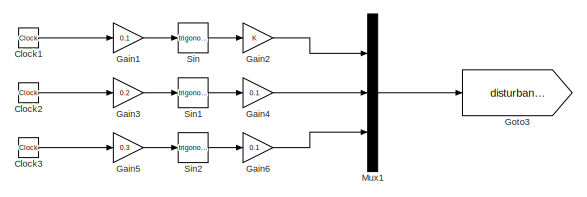
[diagram: root canvas - part 1/3, top left region]
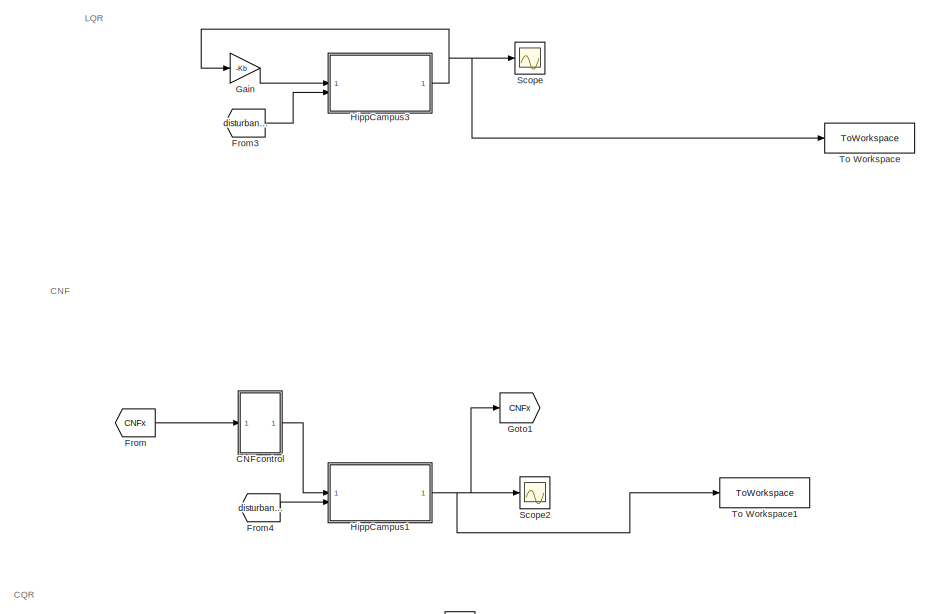
[diagram: root canvas - part 2/3, top right region]
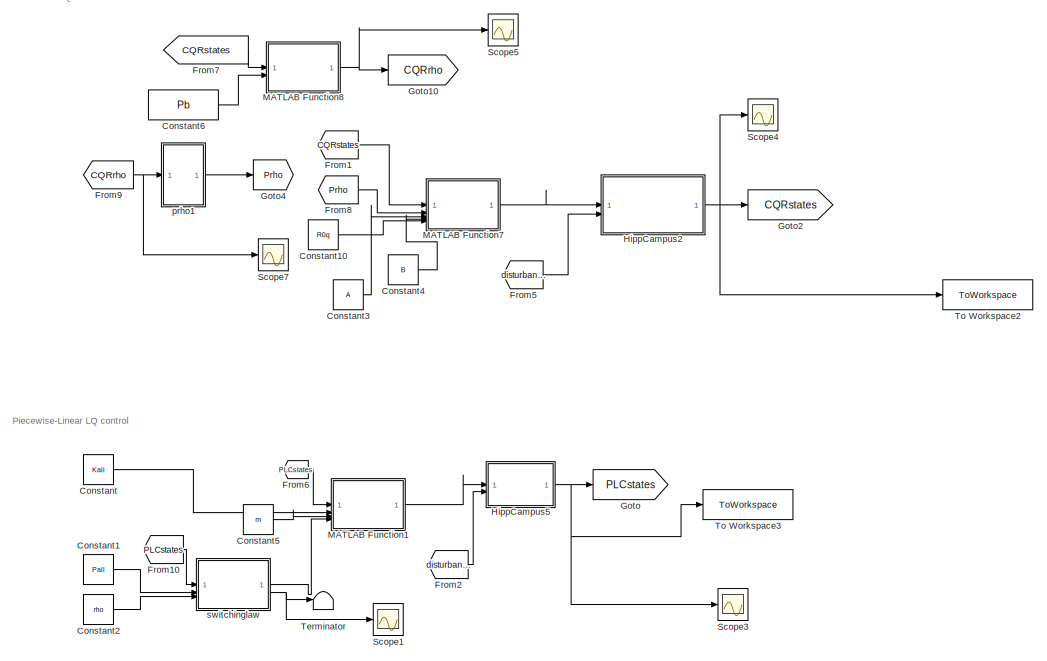
[diagram: root canvas - part 3/3, bottom right region]
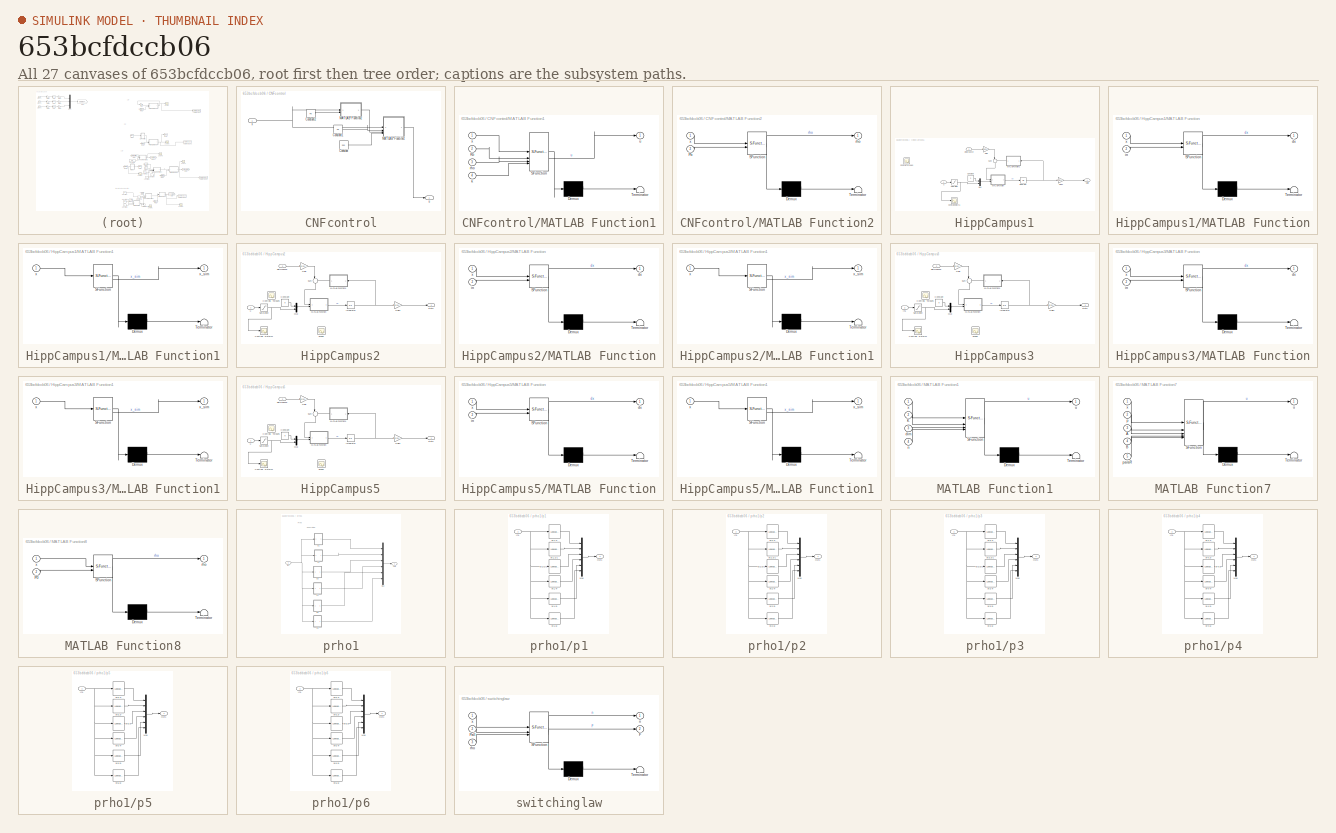
[diagram: thumbnail index - all 27 canvases of the model, root first then tree order]
MODEL slx_653bcfdccb06
KIND model
CONFIG AbsTol = auto
CONFIG EnableMultiTasking = off
CONFIG FixedStep = 0.0001
CONFIG MaxStep = auto
CONFIG MinStep = auto
CONFIG RelTol = 1e-3
CONFIG SampleTimeConstraint = Unconstrained
CONFIG SolverName = ode3
CONFIG StartTime = 0.0
CONFIG StopTime = 50
BLOCK [SubSystem] CNFcontrol
BLOCK [Constant] CNFcontrol/Constant
  Value = 200
BLOCK [Constant] CNFcontrol/Constant1
  Value = Kb
BLOCK [Constant] CNFcontrol/Constant2
  Value = Pb
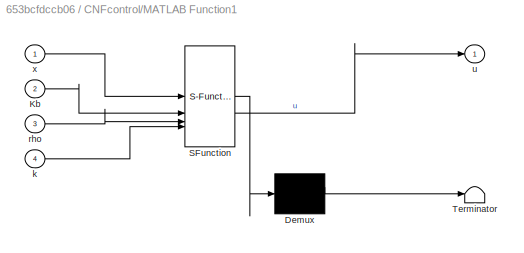
BLOCK [SubSystem] CNFcontrol/MATLAB Function1
  ErrorFcn = Stateflow.Translate.translate
  LibrarySourceBlock = simulink/User-Defined\nFunctions/MATLAB Function
  PermitHierarchicalResolution = ExplicitOnly
  SFBlockType = MATLAB Function
  TreatAsAtomicUnit = on
BLOCK [Demux] CNFcontrol/MATLAB Function1/ Demux 
  Outputs = 1
BLOCK [S-Function] CNFcontrol/MATLAB Function1/ SFunction 
  EnableBusSupport = on
  FunctionName = sf_sfun
  PortCounts = [4 2]
  SFcnIsStateOwnerBlock = off
  SFunctionDeploymentMode = off
  Tag = Stateflow S-Function 3
BLOCK [Terminator] CNFcontrol/MATLAB Function1/ Terminator 
BLOCK [Inport] CNFcontrol/MATLAB Function1/Kb
  Port = 2
BLOCK [Inport] CNFcontrol/MATLAB Function1/k
  Port = 4
BLOCK [Inport] CNFcontrol/MATLAB Function1/rho
  Port = 3
BLOCK [Outport] CNFcontrol/MATLAB Function1/u
BLOCK [Inport] CNFcontrol/MATLAB Function1/x
BLOCK [SubSystem] CNFcontrol/MATLAB Function2
  ErrorFcn = Stateflow.Translate.translate
  LibrarySourceBlock = simulink/User-Defined\nFunctions/MATLAB Function
  PermitHierarchicalResolution = ExplicitOnly
  SFBlockType = MATLAB Function
  TreatAsAtomicUnit = on
BLOCK [Demux] CNFcontrol/MATLAB Function2/ Demux 
  Outputs = 1
BLOCK [S-Function] CNFcontrol/MATLAB Function2/ SFunction 
  EnableBusSupport = on
  FunctionName = sf_sfun
  PortCounts = [2 2]
  SFcnIsStateOwnerBlock = off
  SFunctionDeploymentMode = off
  Tag = Stateflow S-Function 4
BLOCK [Terminator] CNFcontrol/MATLAB Function2/ Terminator 
BLOCK [Inport] CNFcontrol/MATLAB Function2/Pb
  Port = 2
BLOCK [Outport] CNFcontrol/MATLAB Function2/rho
BLOCK [Inport] CNFcontrol/MATLAB Function2/x
BLOCK [Outport] CNFcontrol/u
BLOCK [Inport] CNFcontrol/x
BLOCK [Clock] Clock1
BLOCK [Clock] Clock2
BLOCK [Clock] Clock3
BLOCK [Constant] Constant
  Value = Kall
BLOCK [Constant] Constant1
  Value = Pall
BLOCK [Constant] Constant10
  Value = R0q
BLOCK [Constant] Constant2
  Value = rho
BLOCK [Constant] Constant3
  Value = A
BLOCK [Constant] Constant4
  Value = B
BLOCK [Constant] Constant5
  Value = m
BLOCK [Constant] Constant6
  Value = Pb
BLOCK [From] From
  GotoTag = CNFx
BLOCK [From] From1
  GotoTag = CQRstates
BLOCK [From] From10
  GotoTag = PLCstates
BLOCK [From] From2
  GotoTag = disturbance
BLOCK [From] From3
  GotoTag = disturbance
BLOCK [From] From4
  GotoTag = disturbance
BLOCK [From] From5
  GotoTag = disturbance
BLOCK [From] From6
  GotoTag = PLCstates
BLOCK [From] From7
  GotoTag = CQRstates
BLOCK [From] From8
  GotoTag = Prho
BLOCK [From] From9
  GotoTag = CQRrho
BLOCK [Gain] Gain
  Gain = -Kb
  Multiplication = Matrix(K*u)
BLOCK [Gain] Gain1
  Gain = 0.1
BLOCK [Gain] Gain2
BLOCK [Gain] Gain3
  Gain = 0.2
BLOCK [Gain] Gain4
  Gain = 0.1
BLOCK [Gain] Gain5
  Gain = 0.3
BLOCK [Gain] Gain6
  Gain = 0.1
BLOCK [Goto] Goto
  GotoTag = PLCstates
BLOCK [Goto] Goto1
  GotoTag = CNFx
BLOCK [Goto] Goto10
  GotoTag = CQRrho
BLOCK [Goto] Goto2
  GotoTag = CQRstates
BLOCK [Goto] Goto3
  GotoTag = disturbance
BLOCK [Goto] Goto4
  GotoTag = Prho
BLOCK [SubSystem] HippCampus1
BLOCK [Constant] HippCampus1/Constant
  Value = 0
BLOCK [Scope] HippCampus1/Controls: Rotors1
  Floating = off
  NumInputPorts = 1
  ScopeSpecificationString = Simulink.scopes.TimeScopeBlockCfg('CurrentConfiguration', extmgr.ConfigurationSet(extmgr.Configuration('Core','General UI',true),extmgr.Configuration('Core','Source UI',true),extmgr.Configuration('Sources','WiredSimulink',true,'DataLoggingVariableName','ScopeData1'),extmgr.Configuration('Visuals','Time Domain',true,'SerializedDisplays',{struct('MinYLimReal','-0.71236','MaxYLimReal','0.63928','YLab...<+1614ch>
BLOCK [Scope] HippCampus1/Controls: Torques
  Floating = off
  NumInputPorts = 1
  ScopeSpecificationString = Simulink.scopes.TimeScopeBlockCfg('CurrentConfiguration', extmgr.ConfigurationSet(extmgr.Configuration('Core','General UI',true),extmgr.Configuration('Core','Source UI',true),extmgr.Configuration('Sources','WiredSimulink',true,'DataLoggingVariableName','ScopeData1'),extmgr.Configuration('Visuals','Time Domain',true,'SerializedDisplays',{struct('MinYLimReal','-3.5292','MaxYLimReal','3.00298','YLabe...<+1552ch>  <repeated x4 — deduplicated; at blocks: Controls: Torques>
BLOCK [Gain] HippCampus1/Gain
  Gain = [zeros(6,3);eye(3);zeros(3,3)]
  Multiplication = Matrix(K*u)
BLOCK [Gain] HippCampus1/Gain1
  Gain = [zeros(3,3),eye(3),zeros(3,6);zeros(3,9),eye(3)]
  Multiplication = Matrix(K*u)
BLOCK [Integrator] HippCampus1/Integrator
  InitialCondition = [zeros(3,1);x0(1:3);zeros(3,1);x0(4:6)]
BLOCK [SubSystem] HippCampus1/MATLAB Function
  ErrorFcn = Stateflow.Translate.translate
  LibrarySourceBlock = simulink/User-Defined\nFunctions/MATLAB Function
  PermitHierarchicalResolution = ExplicitOnly
  SFBlockType = MATLAB Function
  TreatAsAtomicUnit = on
BLOCK [Demux] HippCampus1/MATLAB Function/ Demux 
  Outputs = 1
BLOCK [S-Function] HippCampus1/MATLAB Function/ SFunction 
  EnableBusSupport = on
  FunctionName = sf_sfun
  PortCounts = [2 2]
  SFcnIsStateOwnerBlock = off
  SFunctionDeploymentMode = off
  Tag = Stateflow S-Function 1
BLOCK [Terminator] HippCampus1/MATLAB Function/ Terminator 
BLOCK [Outport] HippCampus1/MATLAB Function/dx
BLOCK [Inport] HippCampus1/MATLAB Function/in
  Port = 2
BLOCK [Inport] HippCampus1/MATLAB Function/x
BLOCK [SubSystem] HippCampus1/MATLAB Function1
  ErrorFcn = Stateflow.Translate.translate
  LibrarySourceBlock = simulink/User-Defined\nFunctions/MATLAB Function
  NameLocation = top
  PermitHierarchicalResolution = ExplicitOnly
  SFBlockType = MATLAB Function
  TreatAsAtomicUnit = on
BLOCK [Demux] HippCampus1/MATLAB Function1/ Demux 
  Outputs = 1
BLOCK [S-Function] HippCampus1/MATLAB Function1/ SFunction 
  EnableBusSupport = on
  FunctionName = sf_sfun
  PortCounts = [1 2]
  SFcnIsStateOwnerBlock = off
  SFunctionDeploymentMode = off
  Tag = Stateflow S-Function 2
BLOCK [Terminator] HippCampus1/MATLAB Function1/ Terminator 
BLOCK [Inport] HippCampus1/MATLAB Function1/x
BLOCK [Outport] HippCampus1/MATLAB Function1/x_sim
BLOCK [Mux] HippCampus1/Mux
  DisplayOption = bar
  Inputs = 2
BLOCK [Saturate] HippCampus1/Saturation
  LowerLimit = -umax'
  UpperLimit = umax'
BLOCK [Sum] HippCampus1/Sum
  Inputs = |++
  NameLocation = left
BLOCK [Inport] HippCampus1/disturbance
  Port = 2
BLOCK [Outport] HippCampus1/state
BLOCK [Inport] HippCampus1/u
BLOCK [SubSystem] HippCampus2
BLOCK [Constant] HippCampus2/Constant
  Value = 0
BLOCK [Scope] HippCampus2/Controls: Rotors1
  Floating = off
  NumInputPorts = 1
  ScopeSpecificationString = Simulink.scopes.TimeScopeBlockCfg('CurrentConfiguration', extmgr.ConfigurationSet(extmgr.Configuration('Core','General UI',true),extmgr.Configuration('Core','Source UI',true),extmgr.Configuration('Sources','WiredSimulink',true,'DataLoggingVariableName','ScopeData1'),extmgr.Configuration('Visuals','Time Domain',true,'SerializedDisplays',{struct('MinYLimReal','-0.7215','MaxYLimReal','0.7215','YLabel...<+1608ch>
BLOCK [Scope] HippCampus2/Controls: Torques
  Floating = off
  NumInputPorts = 1
BLOCK [Gain] HippCampus2/Gain
  Gain = [zeros(6,3);eye(3);zeros(3,3)]
  Multiplication = Matrix(K*u)
BLOCK [Gain] HippCampus2/Gain1
  Gain = [zeros(3,3),eye(3),zeros(3,6);zeros(3,9),eye(3)]
  Multiplication = Matrix(K*u)
BLOCK [Integrator] HippCampus2/Integrator
  InitialCondition = [zeros(3,1);x0(1:3);zeros(3,1);x0(4:6)]
BLOCK [SubSystem] HippCampus2/MATLAB Function
  ErrorFcn = Stateflow.Translate.translate
  LibrarySourceBlock = simulink/User-Defined\nFunctions/MATLAB Function
  PermitHierarchicalResolution = ExplicitOnly
  SFBlockType = MATLAB Function
  TreatAsAtomicUnit = on
BLOCK [Demux] HippCampus2/MATLAB Function/ Demux 
  Outputs = 1
BLOCK [S-Function] HippCampus2/MATLAB Function/ SFunction 
  EnableBusSupport = on
  FunctionName = sf_sfun
  PortCounts = [2 2]
  SFcnIsStateOwnerBlock = off
  SFunctionDeploymentMode = off
  Tag = Stateflow S-Function 5
BLOCK [Terminator] HippCampus2/MATLAB Function/ Terminator 
BLOCK [Outport] HippCampus2/MATLAB Function/dx
BLOCK [Inport] HippCampus2/MATLAB Function/in
  Port = 2
BLOCK [Inport] HippCampus2/MATLAB Function/x
BLOCK [SubSystem] HippCampus2/MATLAB Function1
  ErrorFcn = Stateflow.Translate.translate
  LibrarySourceBlock = simulink/User-Defined\nFunctions/MATLAB Function
  NameLocation = top
  PermitHierarchicalResolution = ExplicitOnly
  SFBlockType = MATLAB Function
  TreatAsAtomicUnit = on
BLOCK [Demux] HippCampus2/MATLAB Function1/ Demux 
  Outputs = 1
BLOCK [S-Function] HippCampus2/MATLAB Function1/ SFunction 
  EnableBusSupport = on
  FunctionName = sf_sfun
  PortCounts = [1 2]
  SFcnIsStateOwnerBlock = off
  SFunctionDeploymentMode = off
  Tag = Stateflow S-Function 6
BLOCK [Terminator] HippCampus2/MATLAB Function1/ Terminator 
BLOCK [Inport] HippCampus2/MATLAB Function1/x
BLOCK [Outport] HippCampus2/MATLAB Function1/x_sim
BLOCK [Mux] HippCampus2/Mux
  DisplayOption = bar
  Inputs = 2
BLOCK [Saturate] HippCampus2/Saturation
  LowerLimit = -umax'
  UpperLimit = umax'
BLOCK [Scope] HippCampus2/Scope
  Floating = off
  NumInputPorts = 1
  ScopeSpecificationString = Simulink.scopes.TimeScopeBlockCfg('CurrentConfiguration', extmgr.ConfigurationSet(extmgr.Configuration('Core','General UI',true),extmgr.Configuration('Core','Source UI',true),extmgr.Configuration('Sources','WiredSimulink',true,'DataLoggingVariableName','ScopeData2'),extmgr.Configuration('Visuals','Time Domain',true,'SerializedDisplays',{struct('MinYLimReal','-2.14935','MaxYLimReal','13.57215','YLa...<+1479ch>  <repeated x3 — deduplicated; at blocks: Scope>
BLOCK [Sum] HippCampus2/Sum
  Inputs = |++
  NameLocation = left
BLOCK [Inport] HippCampus2/disturbance
  Port = 2
BLOCK [Outport] HippCampus2/state
BLOCK [Inport] HippCampus2/u
BLOCK [SubSystem] HippCampus3
BLOCK [Constant] HippCampus3/Constant
  Value = 0
BLOCK [Scope] HippCampus3/Controls: Rotors1
  Floating = off
  NumInputPorts = 1
  ScopeSpecificationString = Simulink.scopes.TimeScopeBlockCfg('CurrentConfiguration', extmgr.ConfigurationSet(extmgr.Configuration('Core','General UI',true),extmgr.Configuration('Core','Source UI',true),extmgr.Configuration('Sources','WiredSimulink',true,'DataLoggingVariableName','ScopeData1'),extmgr.Configuration('Visuals','Time Domain',true,'SerializedDisplays',{struct('MinYLimReal','-0.68419','MaxYLimReal','0.38572','YLab...<+1614ch>
BLOCK [Scope] HippCampus3/Controls: Torques
  Floating = off
  NumInputPorts = 1
BLOCK [Gain] HippCampus3/Gain
  Gain = [zeros(6,3);eye(3);zeros(3,3)]
  Multiplication = Matrix(K*u)
BLOCK [Gain] HippCampus3/Gain1
  Gain = [zeros(3,3),eye(3),zeros(3,6);zeros(3,9),eye(3)]
  Multiplication = Matrix(K*u)
BLOCK [Inport] HippCampus3/In1
BLOCK [Integrator] HippCampus3/Integrator
  InitialCondition = [zeros(3,1);x0(1:3);zeros(3,1);x0(4:6)]
BLOCK [SubSystem] HippCampus3/MATLAB Function
  ErrorFcn = Stateflow.Translate.translate
  LibrarySourceBlock = simulink/User-Defined\nFunctions/MATLAB Function
  PermitHierarchicalResolution = ExplicitOnly
  SFBlockType = MATLAB Function
  TreatAsAtomicUnit = on
BLOCK [Demux] HippCampus3/MATLAB Function/ Demux 
  Outputs = 1
BLOCK [S-Function] HippCampus3/MATLAB Function/ SFunction 
  EnableBusSupport = on
  FunctionName = sf_sfun
  PortCounts = [2 2]
  SFcnIsStateOwnerBlock = off
  SFunctionDeploymentMode = off
  Tag = Stateflow S-Function 19
BLOCK [Terminator] HippCampus3/MATLAB Function/ Terminator 
BLOCK [Outport] HippCampus3/MATLAB Function/dx
BLOCK [Inport] HippCampus3/MATLAB Function/in
  Port = 2
BLOCK [Inport] HippCampus3/MATLAB Function/x
BLOCK [SubSystem] HippCampus3/MATLAB Function1
  ErrorFcn = Stateflow.Translate.translate
  LibrarySourceBlock = simulink/User-Defined\nFunctions/MATLAB Function
  NameLocation = top
  PermitHierarchicalResolution = ExplicitOnly
  SFBlockType = MATLAB Function
  TreatAsAtomicUnit = on
BLOCK [Demux] HippCampus3/MATLAB Function1/ Demux 
  Outputs = 1
BLOCK [S-Function] HippCampus3/MATLAB Function1/ SFunction 
  EnableBusSupport = on
  FunctionName = sf_sfun
  PortCounts = [1 2]
  SFcnIsStateOwnerBlock = off
  SFunctionDeploymentMode = off
  Tag = Stateflow S-Function 15
BLOCK [Terminator] HippCampus3/MATLAB Function1/ Terminator 
BLOCK [Inport] HippCampus3/MATLAB Function1/x
BLOCK [Outport] HippCampus3/MATLAB Function1/x_sim
BLOCK [Mux] HippCampus3/Mux
  DisplayOption = bar
  Inputs = 2
BLOCK [Saturate] HippCampus3/Saturation
  LowerLimit = -umax'
  UpperLimit = umax'
BLOCK [Scope] HippCampus3/Scope
  Floating = off
  NumInputPorts = 1
BLOCK [Sum] HippCampus3/Sum
  Inputs = |++
  NameLocation = left
BLOCK [Inport] HippCampus3/disturbance
  Port = 2
BLOCK [Outport] HippCampus3/state
BLOCK [SubSystem] HippCampus5
BLOCK [Constant] HippCampus5/Constant
  Value = 0
BLOCK [Scope] HippCampus5/Controls: Rotors1
  Floating = off
  NumInputPorts = 1
  ScopeSpecificationString = Simulink.scopes.TimeScopeBlockCfg('CurrentConfiguration', extmgr.ConfigurationSet(extmgr.Configuration('Core','General UI',true),extmgr.Configuration('Core','Source UI',true),extmgr.Configuration('Sources','WiredSimulink',true,'DataLoggingVariableName','ScopeData1'),extmgr.Configuration('Visuals','Time Domain',true,'SerializedDisplays',{struct('MinYLimReal','-0.7215','MaxYLimReal','0.7215','YLabel...<+1608ch>
BLOCK [Scope] HippCampus5/Controls: Torques
  Floating = off
  NumInputPorts = 1
BLOCK [Gain] HippCampus5/Gain
  Gain = [zeros(6,3);eye(3);zeros(3,3)]
  Multiplication = Matrix(K*u)
BLOCK [Gain] HippCampus5/Gain1
  Gain = [zeros(3,3),eye(3),zeros(3,6);zeros(3,9),eye(3)]
  Multiplication = Matrix(K*u)
BLOCK [Integrator] HippCampus5/Integrator
  InitialCondition = [zeros(3,1);x0(1:3);zeros(3,1);x0(4:6)]
BLOCK [SubSystem] HippCampus5/MATLAB Function
  ErrorFcn = Stateflow.Translate.translate
  LibrarySourceBlock = simulink/User-Defined\nFunctions/MATLAB Function
  PermitHierarchicalResolution = ExplicitOnly
  SFBlockType = MATLAB Function
  TreatAsAtomicUnit = on
BLOCK [Demux] HippCampus5/MATLAB Function/ Demux 
  Outputs = 1
BLOCK [S-Function] HippCampus5/MATLAB Function/ SFunction 
  EnableBusSupport = on
  FunctionName = sf_sfun
  PortCounts = [2 2]
  SFcnIsStateOwnerBlock = off
  SFunctionDeploymentMode = off
  Tag = Stateflow S-Function 13
BLOCK [Terminator] HippCampus5/MATLAB Function/ Terminator 
BLOCK [Outport] HippCampus5/MATLAB Function/dx
BLOCK [Inport] HippCampus5/MATLAB Function/in
  Port = 2
BLOCK [Inport] HippCampus5/MATLAB Function/x
BLOCK [SubSystem] HippCampus5/MATLAB Function1
  ErrorFcn = Stateflow.Translate.translate
  LibrarySourceBlock = simulink/User-Defined\nFunctions/MATLAB Function
  NameLocation = top
  PermitHierarchicalResolution = ExplicitOnly
  SFBlockType = MATLAB Function
  TreatAsAtomicUnit = on
BLOCK [Demux] HippCampus5/MATLAB Function1/ Demux 
  Outputs = 1
BLOCK [S-Function] HippCampus5/MATLAB Function1/ SFunction 
  EnableBusSupport = on
  FunctionName = sf_sfun
  PortCounts = [1 2]
  SFcnIsStateOwnerBlock = off
  SFunctionDeploymentMode = off
  Tag = Stateflow S-Function 14
BLOCK [Terminator] HippCampus5/MATLAB Function1/ Terminator 
BLOCK [Inport] HippCampus5/MATLAB Function1/x
BLOCK [Outport] HippCampus5/MATLAB Function1/x_sim
BLOCK [Mux] HippCampus5/Mux
  DisplayOption = bar
  Inputs = 2
BLOCK [Saturate] HippCampus5/Saturation
  LowerLimit = -umax'
  UpperLimit = umax'
BLOCK [Scope] HippCampus5/Scope
  Floating = off
  NumInputPorts = 1
BLOCK [Sum] HippCampus5/Sum
  Inputs = |++
  NameLocation = left
BLOCK [Inport] HippCampus5/disturbance
  Port = 2
BLOCK [Outport] HippCampus5/state
BLOCK [Inport] HippCampus5/u
BLOCK [SubSystem] MATLAB Function1
  ErrorFcn = Stateflow.Translate.translate
  LibrarySourceBlock = simulink/User-Defined\nFunctions/MATLAB Function
  PermitHierarchicalResolution = ExplicitOnly
  SFBlockType = MATLAB Function
  TreatAsAtomicUnit = on
BLOCK [Demux] MATLAB Function1/ Demux 
  Outputs = 1
BLOCK [S-Function] MATLAB Function1/ SFunction 
  EnableBusSupport = on
  FunctionName = sf_sfun
  PortCounts = [4 2]
  SFcnIsStateOwnerBlock = off
  SFunctionDeploymentMode = off
  Tag = Stateflow S-Function 7
BLOCK [Terminator] MATLAB Function1/ Terminator 
BLOCK [Inport] MATLAB Function1/K
  Port = 2
BLOCK [Inport] MATLAB Function1/dim
  Port = 3
BLOCK [Inport] MATLAB Function1/n
  Port = 4
BLOCK [Outport] MATLAB Function1/u
BLOCK [Inport] MATLAB Function1/x
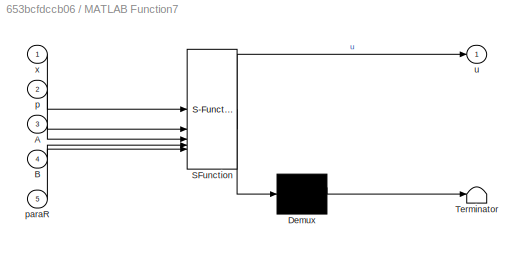
BLOCK [SubSystem] MATLAB Function7
  ErrorFcn = Stateflow.Translate.translate
  LibrarySourceBlock = simulink/User-Defined\nFunctions/MATLAB Function
  PermitHierarchicalResolution = ExplicitOnly
  SFBlockType = MATLAB Function
  TreatAsAtomicUnit = on
BLOCK [Demux] MATLAB Function7/ Demux 
  Outputs = 1
BLOCK [S-Function] MATLAB Function7/ SFunction 
  EnableBusSupport = on
  FunctionName = sf_sfun
  PortCounts = [5 2]
  SFcnIsStateOwnerBlock = off
  SFunctionDeploymentMode = off
  Tag = Stateflow S-Function 9
BLOCK [Terminator] MATLAB Function7/ Terminator 
BLOCK [Inport] MATLAB Function7/A
  Port = 3
BLOCK [Inport] MATLAB Function7/B
  Port = 4
BLOCK [Inport] MATLAB Function7/p
  Port = 2
BLOCK [Inport] MATLAB Function7/paraR
  Port = 5
BLOCK [Outport] MATLAB Function7/u
BLOCK [Inport] MATLAB Function7/x
BLOCK [SubSystem] MATLAB Function8
  ErrorFcn = Stateflow.Translate.translate
  LibrarySourceBlock = simulink/User-Defined\nFunctions/MATLAB Function
  PermitHierarchicalResolution = ExplicitOnly
  SFBlockType = MATLAB Function
  TreatAsAtomicUnit = on
BLOCK [Demux] MATLAB Function8/ Demux 
  Outputs = 1
BLOCK [S-Function] MATLAB Function8/ SFunction 
  EnableBusSupport = on
  FunctionName = sf_sfun
  PortCounts = [2 2]
  SFcnIsStateOwnerBlock = off
  SFunctionDeploymentMode = off
  Tag = Stateflow S-Function 11
BLOCK [Terminator] MATLAB Function8/ Terminator 
BLOCK [Inport] MATLAB Function8/P0
  Port = 2
BLOCK [Outport] MATLAB Function8/rho
BLOCK [Inport] MATLAB Function8/x
BLOCK [Mux] Mux1
  DisplayOption = bar
  Inputs = 3
BLOCK [Scope] Scope
  Floating = off
  NumInputPorts = 1
  ScopeSpecificationString = Simulink.scopes.TimeScopeBlockCfg('CurrentConfiguration', extmgr.ConfigurationSet(extmgr.Configuration('Core','General UI',true),extmgr.Configuration('Core','Source UI',true),extmgr.Configuration('Sources','WiredSimulink',true,'DataLoggingVariableName','ScopeData1'),extmgr.Configuration('Visuals','Time Domain',true,'SerializedDisplays',{struct('MinYLimReal','-6.13344','MaxYLimReal','6.47999','YLab...<+1639ch>
BLOCK [Scope] Scope1
  Floating = off
  NumInputPorts = 1
  ScopeSpecificationString = Simulink.scopes.TimeScopeBlockCfg('CurrentConfiguration', extmgr.ConfigurationSet(extmgr.Configuration('Core','General UI',true),extmgr.Configuration('Core','Source UI',true),extmgr.Configuration('Sources','WiredSimulink',true,'DataLoggingVariableName','ScopeData6'),extmgr.Configuration('Visuals','Time Domain',true,'SerializedDisplays',{struct('MinYLimReal','-1.25','MaxYLimReal','1.25','YLabelReal...<+3416ch>
BLOCK [Scope] Scope2
  Floating = off
  NumInputPorts = 1
  ScopeSpecificationString = Simulink.scopes.TimeScopeBlockCfg('CurrentConfiguration', extmgr.ConfigurationSet(extmgr.Configuration('Core','General UI',true),extmgr.Configuration('Core','Source UI',true),extmgr.Configuration('Sources','WiredSimulink',true,'DataLoggingVariableName','ScopeData2'),extmgr.Configuration('Visuals','Time Domain',true,'SerializedDisplays',{struct('MinYLimReal','-5.21019','MaxYLimReal','3.114','YLabel...<+1638ch>
BLOCK [Scope] Scope3
  Floating = off
  NumInputPorts = 1
  ScopeSpecificationString = Simulink.scopes.TimeScopeBlockCfg('CurrentConfiguration', extmgr.ConfigurationSet(extmgr.Configuration('Core','General UI',true),extmgr.Configuration('Core','Source UI',true),extmgr.Configuration('Sources','WiredSimulink',true,'DataLoggingVariableName','ScopeData7'),extmgr.Configuration('Visuals','Time Domain',true,'SerializedDisplays',{struct('MinYLimReal','-5.30525','MaxYLimReal','3.38277','YLab...<+1668ch>
BLOCK [Scope] Scope4
  Floating = off
  NumInputPorts = 1
  ScopeSpecificationString = Simulink.scopes.TimeScopeBlockCfg('CurrentConfiguration', extmgr.ConfigurationSet(extmgr.Configuration('Core','General UI',true),extmgr.Configuration('Core','Source UI',true),extmgr.Configuration('Sources','WiredSimulink',true,'DataLoggingVariableName','ScopeData3'),extmgr.Configuration('Visuals','Time Domain',true,'SerializedDisplays',{struct('MinYLimReal','-4.91141','MaxYLimReal','3.80881','YLab...<+1661ch>
BLOCK [Scope] Scope5
  Floating = off
  NumInputPorts = 1
  ScopeSpecificationString = Simulink.scopes.TimeScopeBlockCfg('CurrentConfiguration', extmgr.ConfigurationSet(extmgr.Configuration('Core','General UI',true),extmgr.Configuration('Core','Source UI',true),extmgr.Configuration('Sources','WiredSimulink',true,'DataLoggingVariableName','ScopeData4'),extmgr.Configuration('Visuals','Time Domain',true,'SerializedDisplays',{struct('MinYLimReal','-0.00041','MaxYLimReal','0.00372','YLab...<+1443ch>
BLOCK [Scope] Scope7
  Floating = off
  NumInputPorts = 1
  ScopeSpecificationString = Simulink.scopes.TimeScopeBlockCfg('CurrentConfiguration', extmgr.ConfigurationSet(extmgr.Configuration('Core','General UI',true),extmgr.Configuration('Core','Source UI',true),extmgr.Configuration('Sources','WiredSimulink',true,'DataLoggingVariableName','ScopeData5'),extmgr.Configuration('Visuals','Time Domain',true,'SerializedDisplays',{struct('MinYLimReal','-4.00898','MaxYLimReal','36.34295','YLa...<+1397ch>
BLOCK [Trigonometry] Sin
BLOCK [Trigonometry] Sin1
BLOCK [Trigonometry] Sin2
BLOCK [Terminator] Terminator
BLOCK [ToWorkspace] To Workspace
  FixptAsFi = on
  MaxDataPoints = inf
  SampleTime = -1
  SaveFormat = Timeseries
  VariableName = LQRstate
BLOCK [ToWorkspace] To Workspace1
  FixptAsFi = on
  MaxDataPoints = inf
  SampleTime = -1
  SaveFormat = Timeseries
  VariableName = CNFstate
BLOCK [ToWorkspace] To Workspace2
  FixptAsFi = on
  MaxDataPoints = inf
  SampleTime = -1
  SaveFormat = Timeseries
  VariableName = CQRstate
BLOCK [ToWorkspace] To Workspace3
  FixptAsFi = on
  MaxDataPoints = inf
  SampleTime = -1
  SaveFormat = Timeseries
  VariableName = PLQRstate
BLOCK [SubSystem] prho1
BLOCK [Inport] prho1/In1
BLOCK [Mux] prho1/Mux
  DisplayOption = bar
  Inputs = 6
BLOCK [Outport] prho1/Out1
BLOCK [SubSystem] prho1/p1
BLOCK [Inport] prho1/p1/In1
BLOCK [Mux] prho1/p1/Mux
  DisplayOption = bar
  Inputs = 6
BLOCK [Outport] prho1/p1/Out1
BLOCK [Lookup_n-D] prho1/p1/p(1,1)
  BreakpointsForDimension1 = rhospan
  InputPortMap = u0
  InternalRulePriority = Speed
  InterpMethod = Linear Lagrange
  NumberOfTableDimensions = 1
  RndMeth = Simplest
  Table = Pcq(:,1)
BLOCK [Lookup_n-D] prho1/p1/p(1,1)1
  BreakpointsForDimension1 = rhospan
  InputPortMap = u0
  InternalRulePriority = Speed
  InterpMethod = Linear Lagrange
  NumberOfTableDimensions = 1
  RndMeth = Simplest
  Table = Pcq(:,2)
BLOCK [Lookup_n-D] prho1/p1/p(1,1)2
  BreakpointsForDimension1 = rhospan
  InputPortMap = u0
  InternalRulePriority = Speed
  InterpMethod = Linear Lagrange
  NumberOfTableDimensions = 1
  RndMeth = Simplest
  Table = Pcq(:,3)
BLOCK [Lookup_n-D] prho1/p1/p(1,4)
  BreakpointsForDimension1 = rhospan
  InputPortMap = u0
  InternalRulePriority = Speed
  InterpMethod = Linear Lagrange
  NumberOfTableDimensions = 1
  RndMeth = Simplest
  Table = Pcq(:,4)
BLOCK [Lookup_n-D] prho1/p1/p(1,5)
  BreakpointsForDimension1 = rhospan
  InputPortMap = u0
  InternalRulePriority = Speed
  InterpMethod = Linear Lagrange
  NumberOfTableDimensions = 1
  RndMeth = Simplest
  Table = Pcq(:,5)
BLOCK [Lookup_n-D] prho1/p1/p(1,6)
  BreakpointsForDimension1 = rhospan
  InputPortMap = u0
  InternalRulePriority = Speed
  InterpMethod = Linear Lagrange
  NumberOfTableDimensions = 1
  RndMeth = Simplest
  Table = Pcq(:,6)
BLOCK [SubSystem] prho1/p2
BLOCK [Inport] prho1/p2/In1
BLOCK [Mux] prho1/p2/Mux
  DisplayOption = bar
  Inputs = 6
BLOCK [Outport] prho1/p2/Out1
BLOCK [Lookup_n-D] prho1/p2/p(2,1)
  BreakpointsForDimension1 = rhospan
  InputPortMap = u0
  InternalRulePriority = Speed
  InterpMethod = Linear Lagrange
  NumberOfTableDimensions = 1
  RndMeth = Simplest
  Table = Pcq(:,7)
BLOCK [Lookup_n-D] prho1/p2/p(2,2)1
  BreakpointsForDimension1 = rhospan
  InputPortMap = u0
  InternalRulePriority = Speed
  InterpMethod = Linear Lagrange
  NumberOfTableDimensions = 1
  RndMeth = Simplest
  Table = Pcq(:,8)
BLOCK [Lookup_n-D] prho1/p2/p(2,3)2
  BreakpointsForDimension1 = rhospan
  InputPortMap = u0
  InternalRulePriority = Speed
  InterpMethod = Linear Lagrange
  NumberOfTableDimensions = 1
  RndMeth = Simplest
  Table = Pcq(:,9)
BLOCK [Lookup_n-D] prho1/p2/p(2,4)
  BreakpointsForDimension1 = rhospan
  InputPortMap = u0
  InternalRulePriority = Speed
  InterpMethod = Linear Lagrange
  NumberOfTableDimensions = 1
  RndMeth = Simplest
  Table = Pcq(:,10)
BLOCK [Lookup_n-D] prho1/p2/p(2,5)
  BreakpointsForDimension1 = rhospan
  InputPortMap = u0
  InternalRulePriority = Speed
  InterpMethod = Linear Lagrange
  NumberOfTableDimensions = 1
  RndMeth = Simplest
  Table = Pcq(:,11)
BLOCK [Lookup_n-D] prho1/p2/p(2,6)
  BreakpointsForDimension1 = rhospan
  InputPortMap = u0
  InternalRulePriority = Speed
  InterpMethod = Linear Lagrange
  NumberOfTableDimensions = 1
  RndMeth = Simplest
  Table = Pcq(:,12)
BLOCK [SubSystem] prho1/p3
BLOCK [Inport] prho1/p3/In1
BLOCK [Mux] prho1/p3/Mux
  DisplayOption = bar
  Inputs = 6
BLOCK [Outport] prho1/p3/Out1
BLOCK [Lookup_n-D] prho1/p3/p(3,1)
  BreakpointsForDimension1 = rhospan
  InputPortMap = u0
  InternalRulePriority = Speed
  InterpMethod = Linear Lagrange
  NumberOfTableDimensions = 1
  RndMeth = Simplest
  Table = Pcq(:,13)
BLOCK [Lookup_n-D] prho1/p3/p(3,2)1
  BreakpointsForDimension1 = rhospan
  InputPortMap = u0
  InternalRulePriority = Speed
  InterpMethod = Linear Lagrange
  NumberOfTableDimensions = 1
  RndMeth = Simplest
  Table = Pcq(:,14)
BLOCK [Lookup_n-D] prho1/p3/p(3,3)2
  BreakpointsForDimension1 = rhospan
  InputPortMap = u0
  InternalRulePriority = Speed
  InterpMethod = Linear Lagrange
  NumberOfTableDimensions = 1
  RndMeth = Simplest
  Table = Pcq(:,15)
BLOCK [Lookup_n-D] prho1/p3/p(3,4)
  BreakpointsForDimension1 = rhospan
  InputPortMap = u0
  InternalRulePriority = Speed
  InterpMethod = Linear Lagrange
  NumberOfTableDimensions = 1
  RndMeth = Simplest
  Table = Pcq(:,16)
BLOCK [Lookup_n-D] prho1/p3/p(3,5)
  BreakpointsForDimension1 = rhospan
  InputPortMap = u0
  InternalRulePriority = Speed
  InterpMethod = Linear Lagrange
  NumberOfTableDimensions = 1
  RndMeth = Simplest
  Table = Pcq(:,17)
BLOCK [Lookup_n-D] prho1/p3/p(3,6)
  BreakpointsForDimension1 = rhospan
  InputPortMap = u0
  InternalRulePriority = Speed
  InterpMethod = Linear Lagrange
  NumberOfTableDimensions = 1
  RndMeth = Simplest
  Table = Pcq(:,18)
BLOCK [SubSystem] prho1/p4
BLOCK [Inport] prho1/p4/In1
BLOCK [Mux] prho1/p4/Mux
  DisplayOption = bar
  Inputs = 6
BLOCK [Outport] prho1/p4/Out1
BLOCK [Lookup_n-D] prho1/p4/p(4,1)
  BreakpointsForDimension1 = rhospan
  InputPortMap = u0
  InternalRulePriority = Speed
  InterpMethod = Linear Lagrange
  NumberOfTableDimensions = 1
  RndMeth = Simplest
  Table = Pcq(:,19)
BLOCK [Lookup_n-D] prho1/p4/p(4,2)
  BreakpointsForDimension1 = rhospan
  InputPortMap = u0
  InternalRulePriority = Speed
  InterpMethod = Linear Lagrange
  NumberOfTableDimensions = 1
  RndMeth = Simplest
  Table = Pcq(:,20)
BLOCK [Lookup_n-D] prho1/p4/p(4,3)
  BreakpointsForDimension1 = rhospan
  InputPortMap = u0
  InternalRulePriority = Speed
  InterpMethod = Linear Lagrange
  NumberOfTableDimensions = 1
  RndMeth = Simplest
  Table = Pcq(:,21)
BLOCK [Lookup_n-D] prho1/p4/p(4,4)
  BreakpointsForDimension1 = rhospan
  InputPortMap = u0
  InternalRulePriority = Speed
  InterpMethod = Linear Lagrange
  NumberOfTableDimensions = 1
  RndMeth = Simplest
  Table = Pcq(:,22)
BLOCK [Lookup_n-D] prho1/p4/p(4,5)
  BreakpointsForDimension1 = rhospan
  InputPortMap = u0
  InternalRulePriority = Speed
  InterpMethod = Linear Lagrange
  NumberOfTableDimensions = 1
  RndMeth = Simplest
  Table = Pcq(:,23)
BLOCK [Lookup_n-D] prho1/p4/p(4,6)
  BreakpointsForDimension1 = rhospan
  InputPortMap = u0
  InternalRulePriority = Speed
  InterpMethod = Linear Lagrange
  NumberOfTableDimensions = 1
  RndMeth = Simplest
  Table = Pcq(:,24)
BLOCK [SubSystem] prho1/p5
BLOCK [Inport] prho1/p5/In1
BLOCK [Mux] prho1/p5/Mux
  DisplayOption = bar
  Inputs = 6
BLOCK [Outport] prho1/p5/Out1
BLOCK [Lookup_n-D] prho1/p5/p(5,1)
  BreakpointsForDimension1 = rhospan
  InputPortMap = u0
  InternalRulePriority = Speed
  InterpMethod = Linear Lagrange
  NumberOfTableDimensions = 1
  RndMeth = Simplest
  Table = Pcq(:,25)
BLOCK [Lookup_n-D] prho1/p5/p(5,2)
  BreakpointsForDimension1 = rhospan
  InputPortMap = u0
  InternalRulePriority = Speed
  InterpMethod = Linear Lagrange
  NumberOfTableDimensions = 1
  RndMeth = Simplest
  Table = Pcq(:,26)
BLOCK [Lookup_n-D] prho1/p5/p(5,3)
  BreakpointsForDimension1 = rhospan
  InputPortMap = u0
  InternalRulePriority = Speed
  InterpMethod = Linear Lagrange
  NumberOfTableDimensions = 1
  RndMeth = Simplest
  Table = Pcq(:,27)
BLOCK [Lookup_n-D] prho1/p5/p(5,4)
  BreakpointsForDimension1 = rhospan
  InputPortMap = u0
  InternalRulePriority = Speed
  InterpMethod = Linear Lagrange
  NumberOfTableDimensions = 1
  RndMeth = Simplest
  Table = Pcq(:,28)
BLOCK [Lookup_n-D] prho1/p5/p(5,5)
  BreakpointsForDimension1 = rhospan
  InputPortMap = u0
  InternalRulePriority = Speed
  InterpMethod = Linear Lagrange
  NumberOfTableDimensions = 1
  RndMeth = Simplest
  Table = Pcq(:,29)
BLOCK [Lookup_n-D] prho1/p5/p(5,6)
  BreakpointsForDimension1 = rhospan
  InputPortMap = u0
  InternalRulePriority = Speed
  InterpMethod = Linear Lagrange
  NumberOfTableDimensions = 1
  RndMeth = Simplest
  Table = Pcq(:,30)
BLOCK [SubSystem] prho1/p6
BLOCK [Inport] prho1/p6/In1
BLOCK [Mux] prho1/p6/Mux
  DisplayOption = bar
  Inputs = 6
BLOCK [Outport] prho1/p6/Out1
BLOCK [Lookup_n-D] prho1/p6/p(6,1)
  BreakpointsForDimension1 = rhospan
  InputPortMap = u0
  InternalRulePriority = Speed
  InterpMethod = Linear Lagrange
  NumberOfTableDimensions = 1
  RndMeth = Simplest
  Table = Pcq(:,31)
BLOCK [Lookup_n-D] prho1/p6/p(6,2)
  BreakpointsForDimension1 = rhospan
  InputPortMap = u0
  InternalRulePriority = Speed
  InterpMethod = Linear Lagrange
  NumberOfTableDimensions = 1
  RndMeth = Simplest
  Table = Pcq(:,32)
BLOCK [Lookup_n-D] prho1/p6/p(6,3)
  BreakpointsForDimension1 = rhospan
  InputPortMap = u0
  InternalRulePriority = Speed
  InterpMethod = Linear Lagrange
  NumberOfTableDimensions = 1
  RndMeth = Simplest
  Table = Pcq(:,33)
BLOCK [Lookup_n-D] prho1/p6/p(6,4)
  BreakpointsForDimension1 = rhospan
  InputPortMap = u0
  InternalRulePriority = Speed
  InterpMethod = Linear Lagrange
  NumberOfTableDimensions = 1
  RndMeth = Simplest
  Table = Pcq(:,34)
BLOCK [Lookup_n-D] prho1/p6/p(6,5)
  BreakpointsForDimension1 = rhospan
  InputPortMap = u0
  InternalRulePriority = Speed
  InterpMethod = Linear Lagrange
  NumberOfTableDimensions = 1
  RndMeth = Simplest
  Table = Pcq(:,35)
BLOCK [Lookup_n-D] prho1/p6/p(6,6)
  BreakpointsForDimension1 = rhospan
  InputPortMap = u0
  InternalRulePriority = Speed
  InterpMethod = Linear Lagrange
  NumberOfTableDimensions = 1
  RndMeth = Simplest
  Table = Pcq(:,36)
BLOCK [SubSystem] switchinglaw
  ErrorFcn = Stateflow.Translate.translate
  LibrarySourceBlock = simulink/User-Defined\nFunctions/MATLAB Function
  PermitHierarchicalResolution = ExplicitOnly
  SFBlockType = MATLAB Function
  TreatAsAtomicUnit = on
BLOCK [Demux] switchinglaw/ Demux 
  Outputs = 1
BLOCK [S-Function] switchinglaw/ SFunction 
  EnableBusSupport = on
  FunctionName = sf_sfun
  PortCounts = [3 3]
  SFcnIsStateOwnerBlock = off
  SFunctionDeploymentMode = off
  Tag = Stateflow S-Function 8
BLOCK [Terminator] switchinglaw/ Terminator 
BLOCK [Outport] switchinglaw/F
  Port = 2
BLOCK [Inport] switchinglaw/Pall
  Port = 2
BLOCK [Outport] switchinglaw/n
BLOCK [Inport] switchinglaw/rho
  Port = 3
BLOCK [Inport] switchinglaw/x
ANNOTATION (root): CNF
ANNOTATION (root): CQR
ANNOTATION (root): LQR
ANNOTATION (root): Piecewise-Linear LQ control
ANNOTATION prho1: Prho
ANNOTATION prho1: Subsystem
LINE CNFcontrol/Constant1:1 -> CNFcontrol/MATLAB Function1:2
LINE CNFcontrol/Constant2:1 -> CNFcontrol/MATLAB Function2:2
LINE CNFcontrol/Constant:1 -> CNFcontrol/MATLAB Function1:4
LINE CNFcontrol/MATLAB Function1:1 -> CNFcontrol/u:1
LINE CNFcontrol/MATLAB Function2:1 -> CNFcontrol/MATLAB Function1:3
NET CNFcontrol/x:1 -> CNFcontrol/MATLAB Function1:1, CNFcontrol/MATLAB Function2:1
LINE CNFcontrol:1 -> HippCampus1:1
LINE Clock1:1 -> Gain1:1
LINE Clock2:1 -> Gain3:1
LINE Clock3:1 -> Gain5:1
LINE Constant10:1 -> MATLAB Function7:5
LINE Constant1:1 -> switchinglaw:2
LINE Constant2:1 -> switchinglaw:3
LINE Constant3:1 -> MATLAB Function7:3
LINE Constant4:1 -> MATLAB Function7:4
LINE Constant5:1 -> MATLAB Function1:3
LINE Constant6:1 -> MATLAB Function8:2
LINE Constant:1 -> MATLAB Function1:2
LINE From10:1 -> switchinglaw:1
LINE From1:1 -> MATLAB Function7:1
LINE From2:1 -> HippCampus5:2
LINE From3:1 -> HippCampus3:2
LINE From4:1 -> HippCampus1:2
LINE From5:1 -> HippCampus2:2
LINE From6:1 -> MATLAB Function1:1
LINE From7:1 -> MATLAB Function8:1
LINE From8:1 -> MATLAB Function7:2
NET From9:1 -> Scope7:1, prho1:1
LINE From:1 -> CNFcontrol:1
LINE Gain1:1 -> Sin:1
LINE Gain2:1 -> Mux1:1
LINE Gain3:1 -> Sin1:1
LINE Gain4:1 -> Mux1:2
LINE Gain5:1 -> Sin2:1
LINE Gain6:1 -> Mux1:3
LINE Gain:1 -> HippCampus3:1
LINE HippCampus1/Constant:1 -> HippCampus1/Mux:1
LINE HippCampus1/Gain1:1 -> HippCampus1/state:1
LINE HippCampus1/Gain:1 -> HippCampus1/Sum:1
NET HippCampus1/Integrator:1 -> HippCampus1/Gain1:1, HippCampus1/MATLAB Function1:1
LINE HippCampus1/MATLAB Function1:1 -> HippCampus1/Sum:2
LINE HippCampus1/MATLAB Function:1 -> HippCampus1/Integrator:1
LINE HippCampus1/Mux:1 -> HippCampus1/MATLAB Function:2
NET HippCampus1/Saturation:1 -> HippCampus1/Controls: Rotors1:1, HippCampus1/Mux:2
LINE HippCampus1/Sum:1 -> HippCampus1/MATLAB Function:1
LINE HippCampus1/disturbance:1 -> HippCampus1/Gain:1
LINE HippCampus1/u:1 -> HippCampus1/Saturation:1
NET HippCampus1:1 -> Goto1:1, Scope2:1, To Workspace1:1
LINE HippCampus2/Constant:1 -> HippCampus2/Mux:1
LINE HippCampus2/Gain1:1 -> HippCampus2/state:1
LINE HippCampus2/Gain:1 -> HippCampus2/Sum:1
NET HippCampus2/Integrator:1 -> HippCampus2/Gain1:1, HippCampus2/MATLAB Function1:1
LINE HippCampus2/MATLAB Function1:1 -> HippCampus2/Sum:2
LINE HippCampus2/MATLAB Function:1 -> HippCampus2/Integrator:1
LINE HippCampus2/Mux:1 -> HippCampus2/MATLAB Function:2
NET HippCampus2/Saturation:1 -> HippCampus2/Controls: Rotors1:1, HippCampus2/Mux:2
LINE HippCampus2/Sum:1 -> HippCampus2/MATLAB Function:1
LINE HippCampus2/disturbance:1 -> HippCampus2/Gain:1
LINE HippCampus2/u:1 -> HippCampus2/Saturation:1
NET HippCampus2:1 -> Goto2:1, Scope4:1, To Workspace2:1
LINE HippCampus3/Constant:1 -> HippCampus3/Mux:1
LINE HippCampus3/Gain1:1 -> HippCampus3/state:1
LINE HippCampus3/Gain:1 -> HippCampus3/Sum:1
LINE HippCampus3/In1:1 -> HippCampus3/Saturation:1
NET HippCampus3/Integrator:1 -> HippCampus3/Gain1:1, HippCampus3/MATLAB Function1:1
LINE HippCampus3/MATLAB Function1:1 -> HippCampus3/Sum:2
LINE HippCampus3/MATLAB Function:1 -> HippCampus3/Integrator:1
LINE HippCampus3/Mux:1 -> HippCampus3/MATLAB Function:2
NET HippCampus3/Saturation:1 -> HippCampus3/Controls: Rotors1:1, HippCampus3/Mux:2
LINE HippCampus3/Sum:1 -> HippCampus3/MATLAB Function:1
LINE HippCampus3/disturbance:1 -> HippCampus3/Gain:1
NET HippCampus3:1 -> Gain:1, Scope:1, To Workspace:1
LINE HippCampus5/Constant:1 -> HippCampus5/Mux:1
LINE HippCampus5/Gain1:1 -> HippCampus5/state:1
LINE HippCampus5/Gain:1 -> HippCampus5/Sum:1
NET HippCampus5/Integrator:1 -> HippCampus5/Gain1:1, HippCampus5/MATLAB Function1:1
LINE HippCampus5/MATLAB Function1:1 -> HippCampus5/Sum:2
LINE HippCampus5/MATLAB Function:1 -> HippCampus5/Integrator:1
LINE HippCampus5/Mux:1 -> HippCampus5/MATLAB Function:2
NET HippCampus5/Saturation:1 -> HippCampus5/Controls: Rotors1:1, HippCampus5/Mux:2
LINE HippCampus5/Sum:1 -> HippCampus5/MATLAB Function:1
LINE HippCampus5/disturbance:1 -> HippCampus5/Gain:1
LINE HippCampus5/u:1 -> HippCampus5/Saturation:1
NET HippCampus5:1 -> Goto:1, Scope3:1, To Workspace3:1
LINE MATLAB Function1:1 -> HippCampus5:1
LINE MATLAB Function7:1 -> HippCampus2:1
NET MATLAB Function8:1 -> Goto10:1, Scope5:1
LINE Mux1:1 -> Goto3:1
LINE Sin1:1 -> Gain4:1
LINE Sin2:1 -> Gain6:1
LINE Sin:1 -> Gain2:1
NET prho1/In1:1 -> prho1/p1:1, prho1/p2:1, prho1/p3:1, prho1/p4:1, prho1/p5:1, prho1/p6:1
LINE prho1/Mux:1 -> prho1/Out1:1
NET prho1/p1/In1:1 -> prho1/p1/p(1,1)1:1, prho1/p1/p(1,1)2:1, prho1/p1/p(1,1):1, prho1/p1/p(1,4):1, prho1/p1/p(1,5):1, prho1/p1/p(1,6):1
LINE prho1/p1/Mux:1 -> prho1/p1/Out1:1
LINE prho1/p1/p(1,1)1:1 -> prho1/p1/Mux:2
LINE prho1/p1/p(1,1)2:1 -> prho1/p1/Mux:3
LINE prho1/p1/p(1,1):1 -> prho1/p1/Mux:1
LINE prho1/p1/p(1,4):1 -> prho1/p1/Mux:4
LINE prho1/p1/p(1,5):1 -> prho1/p1/Mux:5
LINE prho1/p1/p(1,6):1 -> prho1/p1/Mux:6
LINE prho1/p1:1 -> prho1/Mux:1
NET prho1/p2/In1:1 -> prho1/p2/p(2,1):1, prho1/p2/p(2,2)1:1, prho1/p2/p(2,3)2:1, prho1/p2/p(2,4):1, prho1/p2/p(2,5):1, prho1/p2/p(2,6):1
LINE prho1/p2/Mux:1 -> prho1/p2/Out1:1
LINE prho1/p2/p(2,1):1 -> prho1/p2/Mux:1
LINE prho1/p2/p(2,2)1:1 -> prho1/p2/Mux:2
LINE prho1/p2/p(2,3)2:1 -> prho1/p2/Mux:3
LINE prho1/p2/p(2,4):1 -> prho1/p2/Mux:4
LINE prho1/p2/p(2,5):1 -> prho1/p2/Mux:5
LINE prho1/p2/p(2,6):1 -> prho1/p2/Mux:6
LINE prho1/p2:1 -> prho1/Mux:2
NET prho1/p3/In1:1 -> prho1/p3/p(3,1):1, prho1/p3/p(3,2)1:1, prho1/p3/p(3,3)2:1, prho1/p3/p(3,4):1, prho1/p3/p(3,5):1, prho1/p3/p(3,6):1
LINE prho1/p3/Mux:1 -> prho1/p3/Out1:1
LINE prho1/p3/p(3,1):1 -> prho1/p3/Mux:1
LINE prho1/p3/p(3,2)1:1 -> prho1/p3/Mux:2
LINE prho1/p3/p(3,3)2:1 -> prho1/p3/Mux:3
LINE prho1/p3/p(3,4):1 -> prho1/p3/Mux:4
LINE prho1/p3/p(3,5):1 -> prho1/p3/Mux:5
LINE prho1/p3/p(3,6):1 -> prho1/p3/Mux:6
LINE prho1/p3:1 -> prho1/Mux:3
NET prho1/p4/In1:1 -> prho1/p4/p(4,1):1, prho1/p4/p(4,2):1, prho1/p4/p(4,3):1, prho1/p4/p(4,4):1, prho1/p4/p(4,5):1, prho1/p4/p(4,6):1
LINE prho1/p4/Mux:1 -> prho1/p4/Out1:1
LINE prho1/p4/p(4,1):1 -> prho1/p4/Mux:1
LINE prho1/p4/p(4,2):1 -> prho1/p4/Mux:2
LINE prho1/p4/p(4,3):1 -> prho1/p4/Mux:3
LINE prho1/p4/p(4,4):1 -> prho1/p4/Mux:4
LINE prho1/p4/p(4,5):1 -> prho1/p4/Mux:5
LINE prho1/p4/p(4,6):1 -> prho1/p4/Mux:6
LINE prho1/p4:1 -> prho1/Mux:4
NET prho1/p5/In1:1 -> prho1/p5/p(5,1):1, prho1/p5/p(5,2):1, prho1/p5/p(5,3):1, prho1/p5/p(5,4):1, prho1/p5/p(5,5):1, prho1/p5/p(5,6):1
LINE prho1/p5/Mux:1 -> prho1/p5/Out1:1
LINE prho1/p5/p(5,1):1 -> prho1/p5/Mux:1
LINE prho1/p5/p(5,2):1 -> prho1/p5/Mux:2
LINE prho1/p5/p(5,3):1 -> prho1/p5/Mux:3
LINE prho1/p5/p(5,4):1 -> prho1/p5/Mux:4
LINE prho1/p5/p(5,5):1 -> prho1/p5/Mux:5
LINE prho1/p5/p(5,6):1 -> prho1/p5/Mux:6
LINE prho1/p5:1 -> prho1/Mux:5
NET prho1/p6/In1:1 -> prho1/p6/p(6,1):1, prho1/p6/p(6,2):1, prho1/p6/p(6,3):1, prho1/p6/p(6,4):1, prho1/p6/p(6,5):1, prho1/p6/p(6,6):1
LINE prho1/p6/Mux:1 -> prho1/p6/Out1:1
LINE prho1/p6/p(6,1):1 -> prho1/p6/Mux:1
LINE prho1/p6/p(6,2):1 -> prho1/p6/Mux:2
LINE prho1/p6/p(6,3):1 -> prho1/p6/Mux:3
LINE prho1/p6/p(6,4):1 -> prho1/p6/Mux:4
LINE prho1/p6/p(6,5):1 -> prho1/p6/Mux:5
LINE prho1/p6/p(6,6):1 -> prho1/p6/Mux:6
LINE prho1/p6:1 -> prho1/Mux:6
LINE prho1:1 -> Goto4:1
LINE switchinglaw:1 -> MATLAB Function1:4
NET switchinglaw:2 -> Scope1:1, Terminator:1
note: NET lines group one-source signal fan-out (src -> all destinations, sorted); 1:1 wires keep LINE
CHART HippCampus5/MATLAB Function1 states=1 transitions=1
  STATE_LABEL 'eML_blk_kernel()'
  STATE_LABEL 'SCRIPT:\nfunction x_sim = fcn(x)\nx(1:3) = zeros(3,1);\nx(7:9) = zeros(3,1);\nx_sim = x;\nend'
CHART HippCampus3/MATLAB Function1 states=1 transitions=1
  STATE_LABEL 'eML_blk_kernel()'
  STATE_LABEL 'SCRIPT:\nfunction x_sim = fcn(x)\nx(1:3) = zeros(3,1);\nx(7:9) = zeros(3,1);\nx_sim = x;\nend'
CHART HippCampus1/MATLAB Function states=1 transitions=1
  STATE_LABEL 'eML_blk_kernel()'
  STATE_LABEL 'SCRIPT:\n\nfunction dx = fcn(x, in)\nzg    =  0.05;    % [m]\ng     =  9.81;    % [m/s^2]\n\nm     =  1.43;    % [kg]\nIx    = 0.00241; % [kgm^2]\nIy    = 0.01072; % [kgm^2]\nIz    = 0.01072; % [kgm^2]\nXudot = -1.11;    % [kg]\nYvdot = -2.80;    % [kg]\nZwdot = -2.80;    % [kg]\nKpdot = -0.0018;  % [kgm^2]\nMqdot = -0.0095;  % [kgm^2]\nNrdot = -0.0095;  % [kgm^2]\nXu    = -4.56;    % [kg/m]\nYv    = -17.36;   % [...<+1323ch>'  <repeated x4 — deduplicated; at blocks: MATLAB Function>
CHART HippCampus3/MATLAB Function states=1 transitions=1
  STATE_LABEL 'eML_blk_kernel()'
CHART HippCampus1/MATLAB Function1 states=1 transitions=1
  STATE_LABEL 'eML_blk_kernel()'
  STATE_LABEL 'SCRIPT:\nfunction x_sim = fcn(x)\nx(1:3) = zeros(3,1);\nx(7:9) = zeros(3,1);\nx_sim = x;\nend'
CHART CNFcontrol/MATLAB Function1 states=1 transitions=1
  STATE_LABEL 'eML_blk_kernel()'
  STATE_LABEL 'SCRIPT:\nfunction u= fcn(x,Kb,rho,k)\nu = - (1+k*exp(-0.65*(rho)))*Kb*x;\n'
CHART CNFcontrol/MATLAB Function2 states=1 transitions=1
  STATE_LABEL 'eML_blk_kernel()'
  STATE_LABEL "SCRIPT:\nfunction rho = fcn(x,Pb)\n\nrho = x'*Pb*x;\n"
CHART HippCampus2/MATLAB Function states=1 transitions=1
  STATE_LABEL 'eML_blk_kernel()'
CHART HippCampus2/MATLAB Function1 states=1 transitions=1
  STATE_LABEL 'eML_blk_kernel()'
  STATE_LABEL 'SCRIPT:\nfunction x_sim = fcn(x)\nx(1:3) = zeros(3,1);\nx(7:9) = zeros(3,1);\nx_sim = x;\nend'
CHART MATLAB Function1 states=1 transitions=1
  STATE_LABEL 'eML_blk_kernel()'
  STATE_LABEL 'SCRIPT:\nfunction u = fcn(x,K,dim,n)\nudim = dim;\n%selector = n*dim-2;\n%Kuse = zeros(dim,6);\n%Kuse(1,:)=K(n*dim-2,:);\n%Kuse(2,:)=K(n*dim-1,:);\n%Kuse(3,:)=K(n*dim,:);\n%Kuse = K(selector:n*dim,1:6);\n%u = zeros(3,1);\n%u(1) = -Kuse(1,:)*x;\n%u(2) = -Kuse(2,:)*x;\n%u(3) = -Kuse(3,:)*x;\nd = -K((n*udim-udim+1):(n*udim),:)*x;\nu = zeros(3,1);\nu(1)=d(1);\nu(2)=d(2);\nu(3)=d(3);\nend\n'
CHART switchinglaw states=1 transitions=1
  STATE_LABEL 'eML_blk_kernel()'
  STATE_LABEL "SCRIPT:\nfunction [n,F] = fcn(x,Pall,rho)\nN = size(rho,1);\ni = 1;\nxdim = size(Pall',1);\n%udim = dim;\nF = zeros(N,1);\nfor i = 1:N\n    P = Pall(i*xdim-xdim+1:i*xdim,:);\n    F(i) = sign(rho(i)-x'*P*x);\nend\nn=1;\nfor i = 1:N-1\n    d = F(i)*F(i+1);\n    if d<0\n        n = i;\n    end\nend\n\nif F(1)*F(N)>0&&F(1)>0\n    n = N;\nend\nif F(1)*F(N)>0&&F(1)<0\n    n = 1;\nend\n\n"
CHART MATLAB Function7 states=1 transitions=1
  STATE_LABEL 'eML_blk_kernel()'
  STATE_LABEL "SCRIPT:\nfunction u= fcn(x,p,A,B,paraR)\nR =paraR;\n\n% system matrix\n\np_ = reshape(p,[6,6]);\nP = p_';\nR_inv = inv(R);\nu = -R_inv*B'*P*x;\n"
CHART MATLAB Function8 states=1 transitions=1
  STATE_LABEL 'eML_blk_kernel()'
  STATE_LABEL "SCRIPT:\nfunction rho = fcn(x,P0)\n\nrho = x'*P0*x;\n"
CHART HippCampus5/MATLAB Function states=1 transitions=1
  STATE_LABEL 'eML_blk_kernel()'
CHART  states=0 transitions=0
CHART  states=0 transitions=0
CHART  states=0 transitions=0
CHART  states=0 transitions=0
CHART  states=0 transitions=0
CHART  states=0 transitions=0
CHART  states=0 transitions=0
CHART  states=0 transitions=0
CHART  states=0 transitions=0
CHART  states=0 transitions=0
CHART  states=0 transitions=0
CHART  states=0 transitions=0
CHART  states=0 transitions=0
CHART  states=0 transitions=0
